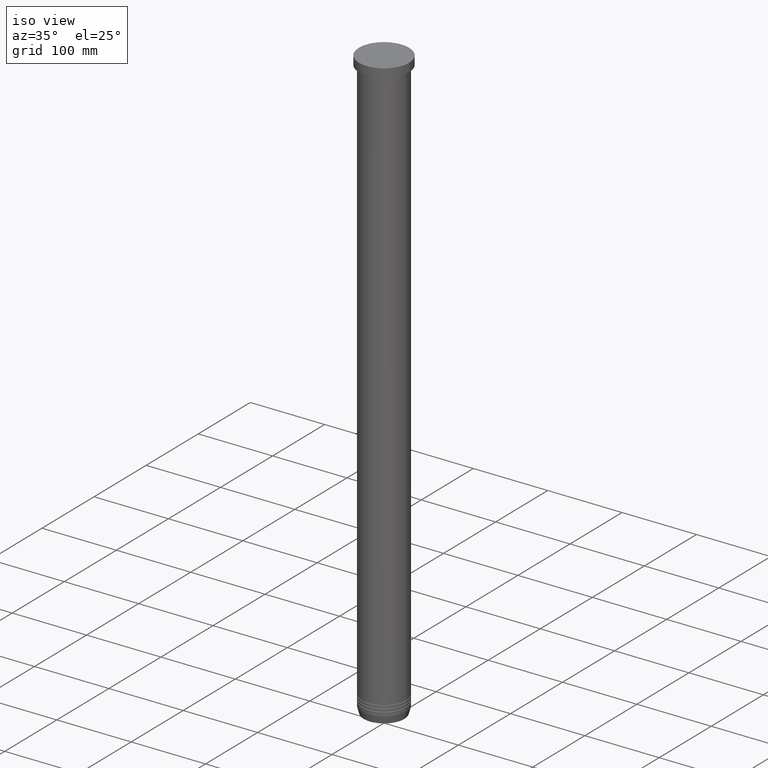
[diagram: clean part render]
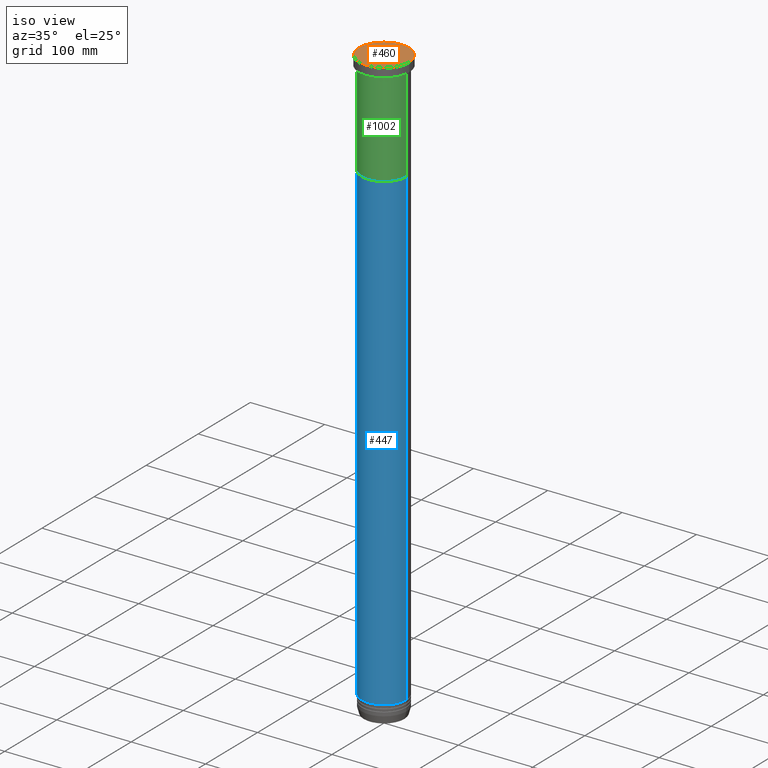
[diagram: same view with three faces highlighted in distinct colors, each labeled with its STEP entity id]
A machine part, iso view with three faces highlighted in distinct colors.
Their STEP definitions:

[orange] entity #460 — the highlighted planar face has unit normal (0, -0, 1).
#15 = CARTESIAN_POINT ( 'NONE',  ( 0.000000000000000000, 0.000000000000000000, 0.000000000000000000 ) ) ;
#68 = EDGE_CURVE ( 'NONE', #649, #998, #766, .T. ) ;
#113 = EDGE_LOOP ( 'NONE', ( #463, #349 ) ) ;
#202 = DIRECTION ( 'NONE',  ( 1.000000000000000000, 0.000000000000000000, 0.000000000000000000 ) ) ;
#243 = DIRECTION ( 'NONE',  ( 0.000000000000000000, -0.000000000000000000, 1.000000000000000000 ) ) ;
#273 = DIRECTION ( 'NONE',  ( -0.000000000000000000, -0.000000000000000000, 1.000000000000000000 ) ) ;
#281 = DIRECTION ( 'NONE',  ( -0.000000000000000000, -0.000000000000000000, 1.000000000000000000 ) ) ;
#338 = CIRCLE ( 'NONE', #570, 33.50000000000000000 ) ;
#349 = ORIENTED_EDGE ( 'NONE', *, *, #68, .T. ) ;
#460 = ADVANCED_FACE ( 'NONE', ( #986 ), #726, .T. ) ;
#463 = ORIENTED_EDGE ( 'NONE', *, *, #600, .T. ) ;
#567 = CARTESIAN_POINT ( 'NONE',  ( 0.000000000000000000, 0.000000000000000000, 0.000000000000000000 ) ) ;
#569 = AXIS2_PLACEMENT_3D ( 'NONE', #567, #243, #902 ) ;
#570 = AXIS2_PLACEMENT_3D ( 'NONE', #15, #273, #202 ) ;
#597 = CARTESIAN_POINT ( 'NONE',  ( 0.000000000000000000, 0.000000000000000000, 0.000000000000000000 ) ) ;
#600 = EDGE_CURVE ( 'NONE', #998, #649, #338, .T. ) ;
#618 = CARTESIAN_POINT ( 'NONE',  ( 33.50000000000000000, 4.133182947122317561E-15, 0.000000000000000000 ) ) ;
#649 = VERTEX_POINT ( 'NONE', #618 ) ;
#726 = PLANE ( 'NONE',  #569 ) ;
#748 = AXIS2_PLACEMENT_3D ( 'NONE', #597, #281, #839 ) ;
#766 = CIRCLE ( 'NONE', #748, 33.50000000000000000 ) ;
#774 = CARTESIAN_POINT ( 'NONE',  ( -33.50000000000000000, 0.000000000000000000, 0.000000000000000000 ) ) ;
#839 = DIRECTION ( 'NONE',  ( 1.000000000000000000, 0.000000000000000000, 0.000000000000000000 ) ) ;
#902 = DIRECTION ( 'NONE',  ( 1.000000000000000000, 0.000000000000000000, 0.000000000000000000 ) ) ;
#986 = FACE_OUTER_BOUND ( 'NONE', #113, .T. ) ;
#998 = VERTEX_POINT ( 'NONE', #774 ) ;

[blue] entity #447 — the highlighted cylindrical surface (edge-blend (fillet) strip) has radius 30 mm, axis along (-0, -0, 1).
#47 = DIRECTION ( 'NONE',  ( 1.000000000000000000, 0.000000000000000000, 0.000000000000000000 ) ) ;
#58 = VERTEX_POINT ( 'NONE', #592 ) ;
#98 = EDGE_CURVE ( 'NONE', #602, #1037, #586, .T. ) ;
#100 = CARTESIAN_POINT ( 'NONE',  ( -30.00000000000000355, 3.673940397442059967E-15, -140.0000000000000000 ) ) ;
#128 = CARTESIAN_POINT ( 'NONE',  ( -29.99999999999999645, 3.673940397442059178E-15, 0.000000000000000000 ) ) ;
#164 = ORIENTED_EDGE ( 'NONE', *, *, #497, .F. ) ;
#238 = AXIS2_PLACEMENT_3D ( 'NONE', #617, #721, #47 ) ;
#252 = DIRECTION ( 'NONE',  ( 1.000000000000000000, 0.000000000000000000, 0.000000000000000000 ) ) ;
#265 = EDGE_CURVE ( 'NONE', #58, #591, #552, .T. ) ;
#277 = EDGE_CURVE ( 'NONE', #602, #58, #553, .T. ) ;
#305 = AXIS2_PLACEMENT_3D ( 'NONE', #411, #907, #252 ) ;
#401 = FACE_OUTER_BOUND ( 'NONE', #810, .T. ) ;
#411 = CARTESIAN_POINT ( 'NONE',  ( 0.000000000000000000, 0.000000000000000000, 0.000000000000000000 ) ) ;
#430 = DIRECTION ( 'NONE',  ( -0.000000000000000000, -0.000000000000000000, 1.000000000000000000 ) ) ;
#447 = ADVANCED_FACE ( 'NONE', ( #401 ), #980, .T. ) ;
#497 = EDGE_CURVE ( 'NONE', #1037, #591, #700, .T. ) ;
#519 = CARTESIAN_POINT ( 'NONE',  ( -29.99999999999999289, 3.673940397442059178E-15, -775.9999999999998863 ) ) ;
#527 = DIRECTION ( 'NONE',  ( 1.000000000000000000, 0.000000000000000000, 0.000000000000000000 ) ) ;
#547 = DIRECTION ( 'NONE',  ( -0.000000000000000000, -0.000000000000000000, 1.000000000000000000 ) ) ;
#552 = LINE ( 'NONE', #708, #1023 ) ;
#553 = CIRCLE ( 'NONE', #238, 29.99999999999999289 ) ;
#586 = LINE ( 'NONE', #128, #679 ) ;
#591 = VERTEX_POINT ( 'NONE', #929 ) ;
#592 = CARTESIAN_POINT ( 'NONE',  ( 29.99999999999999289, 0.000000000000000000, -775.9999999999998863 ) ) ;
#602 = VERTEX_POINT ( 'NONE', #519 ) ;
#617 = CARTESIAN_POINT ( 'NONE',  ( 0.000000000000000000, 0.000000000000000000, -775.9999999999998863 ) ) ;
#637 = ORIENTED_EDGE ( 'NONE', *, *, #98, .F. ) ;
#663 = AXIS2_PLACEMENT_3D ( 'NONE', #837, #1008, #527 ) ;
#679 = VECTOR ( 'NONE', #430, 1000.000000000000000 ) ;
#700 = CIRCLE ( 'NONE', #663, 30.00000000000000000 ) ;
#708 = CARTESIAN_POINT ( 'NONE',  ( 29.99999999999999645, 0.000000000000000000, 0.000000000000000000 ) ) ;
#721 = DIRECTION ( 'NONE',  ( -0.000000000000000000, -0.000000000000000000, 1.000000000000000000 ) ) ;
#727 = ORIENTED_EDGE ( 'NONE', *, *, #277, .T. ) ;
#810 = EDGE_LOOP ( 'NONE', ( #637, #727, #912, #164 ) ) ;
#837 = CARTESIAN_POINT ( 'NONE',  ( 0.000000000000000000, 0.000000000000000000, -140.0000000000000000 ) ) ;
#907 = DIRECTION ( 'NONE',  ( -0.000000000000000000, -0.000000000000000000, 1.000000000000000000 ) ) ;
#912 = ORIENTED_EDGE ( 'NONE', *, *, #265, .T. ) ;
#929 = CARTESIAN_POINT ( 'NONE',  ( 30.00000000000000000, 0.000000000000000000, -140.0000000000000000 ) ) ;
#980 = CYLINDRICAL_SURFACE ( 'NONE', #305, 29.99999999999999645 ) ;
#1008 = DIRECTION ( 'NONE',  ( -0.000000000000000000, -0.000000000000000000, 1.000000000000000000 ) ) ;
#1023 = VECTOR ( 'NONE', #547, 1000.000000000000000 ) ;
#1037 = VERTEX_POINT ( 'NONE', #100 ) ;

[green] entity #1002 — the highlighted cylindrical surface (edge-blend (fillet) strip) has radius 30 mm, axis along (-0, -0, 1).
#29 = VERTEX_POINT ( 'NONE', #182 ) ;
#30 = LINE ( 'NONE', #850, #189 ) ;
#35 = CARTESIAN_POINT ( 'NONE',  ( -30.00000000000000000, 3.673940397442059178E-15, 0.000000000000000000 ) ) ;
#65 = CARTESIAN_POINT ( 'NONE',  ( -30.00000000000000000, 3.673940397442059178E-15, -12.99999999999999822 ) ) ;
#78 = DIRECTION ( 'NONE',  ( -0.000000000000000000, -0.000000000000000000, 1.000000000000000000 ) ) ;
#111 = CARTESIAN_POINT ( 'NONE',  ( 0.000000000000000000, 0.000000000000000000, 0.000000000000000000 ) ) ;
#166 = EDGE_CURVE ( 'NONE', #29, #417, #30, .T. ) ;
#182 = CARTESIAN_POINT ( 'NONE',  ( 30.00000000000000000, 0.000000000000000000, -140.0000000000000000 ) ) ;
#189 = VECTOR ( 'NONE', #773, 1000.000000000000000 ) ;
#247 = CARTESIAN_POINT ( 'NONE',  ( 30.00000000000000000, 0.000000000000000000, -12.99999999999999822 ) ) ;
#253 = ORIENTED_EDGE ( 'NONE', *, *, #782, .F. ) ;
#282 = CYLINDRICAL_SURFACE ( 'NONE', #835, 30.00000000000000000 ) ;
#309 = CARTESIAN_POINT ( 'NONE',  ( -30.00000000000000000, 3.673940397442059178E-15, -140.0000000000000000 ) ) ;
#334 = CARTESIAN_POINT ( 'NONE',  ( 0.000000000000000000, 0.000000000000000000, -140.0000000000000000 ) ) ;
#398 = EDGE_CURVE ( 'NONE', #691, #29, #1005, .T. ) ;
#417 = VERTEX_POINT ( 'NONE', #247 ) ;
#421 = AXIS2_PLACEMENT_3D ( 'NONE', #969, #1052, #477 ) ;
#429 = EDGE_LOOP ( 'NONE', ( #493, #994, #469, #253 ) ) ;
#433 = DIRECTION ( 'NONE',  ( -0.000000000000000000, -0.000000000000000000, 1.000000000000000000 ) ) ;
#439 = LINE ( 'NONE', #35, #921 ) ;
#469 = ORIENTED_EDGE ( 'NONE', *, *, #166, .T. ) ;
#477 = DIRECTION ( 'NONE',  ( 1.000000000000000000, 0.000000000000000000, 0.000000000000000000 ) ) ;
#493 = ORIENTED_EDGE ( 'NONE', *, *, #616, .F. ) ;
#616 = EDGE_CURVE ( 'NONE', #691, #657, #439, .T. ) ;
#638 = DIRECTION ( 'NONE',  ( 1.000000000000000000, 0.000000000000000000, 0.000000000000000000 ) ) ;
#657 = VERTEX_POINT ( 'NONE', #65 ) ;
#682 = CIRCLE ( 'NONE', #421, 30.00000000000000000 ) ;
#683 = FACE_OUTER_BOUND ( 'NONE', #429, .T. ) ;
#690 = DIRECTION ( 'NONE',  ( -0.000000000000000000, -0.000000000000000000, 1.000000000000000000 ) ) ;
#691 = VERTEX_POINT ( 'NONE', #309 ) ;
#773 = DIRECTION ( 'NONE',  ( -0.000000000000000000, -0.000000000000000000, 1.000000000000000000 ) ) ;
#782 = EDGE_CURVE ( 'NONE', #657, #417, #682, .T. ) ;
#835 = AXIS2_PLACEMENT_3D ( 'NONE', #111, #433, #914 ) ;
#850 = CARTESIAN_POINT ( 'NONE',  ( 30.00000000000000000, 0.000000000000000000, 0.000000000000000000 ) ) ;
#914 = DIRECTION ( 'NONE',  ( 1.000000000000000000, 0.000000000000000000, 0.000000000000000000 ) ) ;
#921 = VECTOR ( 'NONE', #690, 1000.000000000000000 ) ;
#969 = CARTESIAN_POINT ( 'NONE',  ( 0.000000000000000000, 0.000000000000000000, -12.99999999999999822 ) ) ;
#994 = ORIENTED_EDGE ( 'NONE', *, *, #398, .T. ) ;
#1002 = ADVANCED_FACE ( 'NONE', ( #683 ), #282, .T. ) ;
#1005 = CIRCLE ( 'NONE', #1036, 30.00000000000000000 ) ;
#1036 = AXIS2_PLACEMENT_3D ( 'NONE', #334, #78, #638 ) ;
#1052 = DIRECTION ( 'NONE',  ( -0.000000000000000000, -0.000000000000000000, 1.000000000000000000 ) ) ;